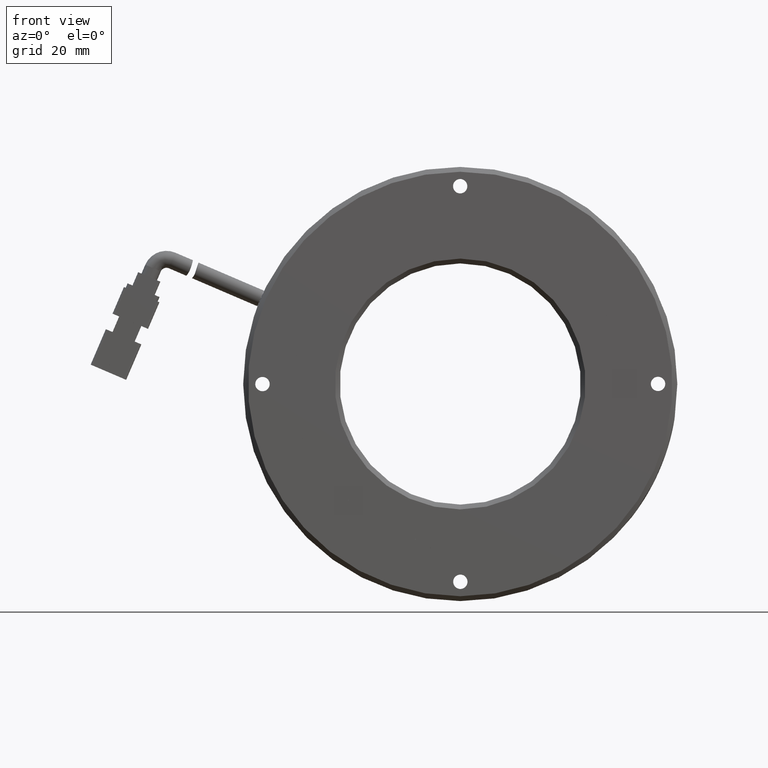
[diagram: clean part render]
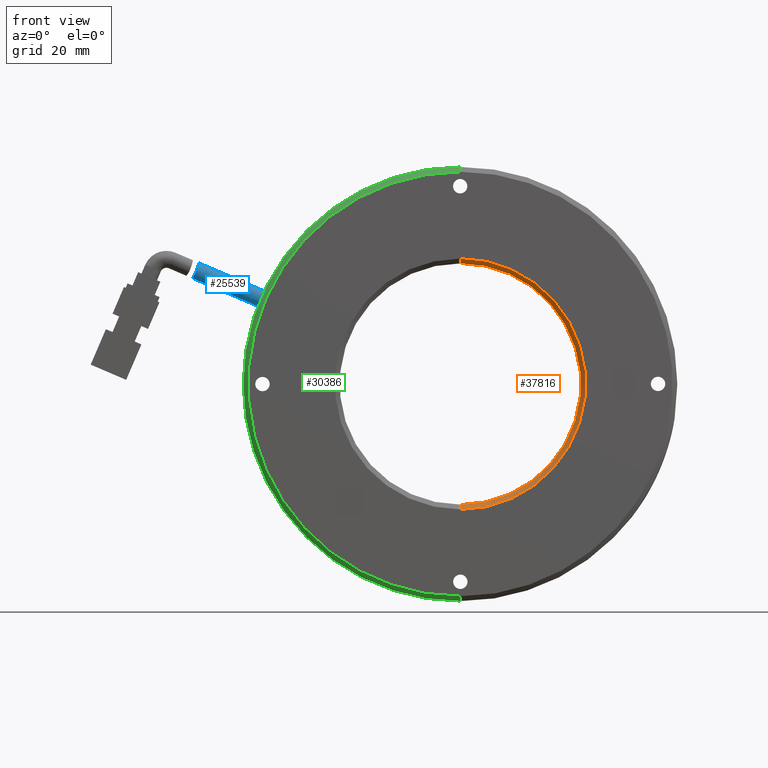
[diagram: same view with three faces highlighted in distinct colors, each labeled with its STEP entity id]
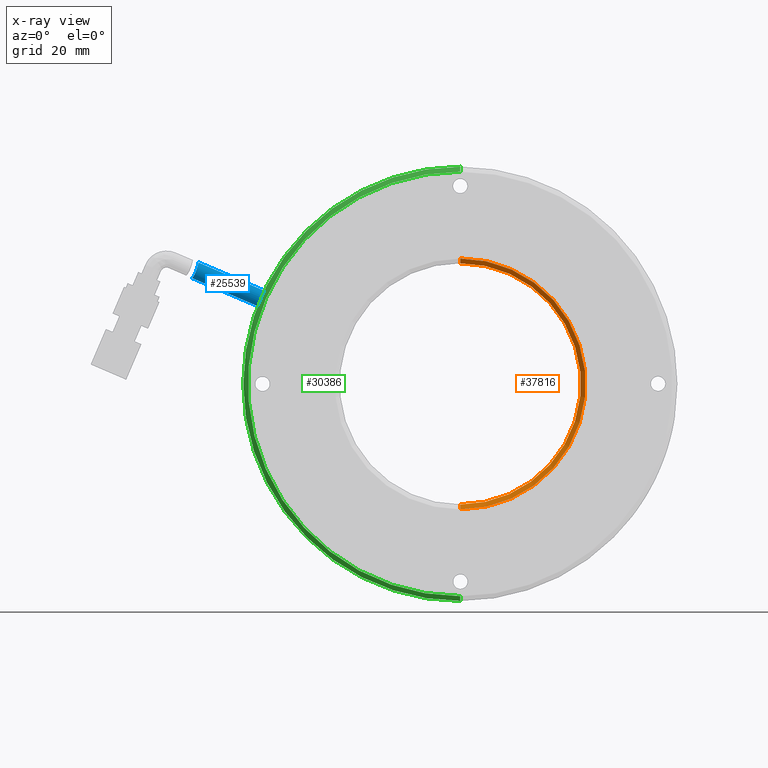
[diagram: x-ray of the same camera — body ghosted, the three highlighted faces saturated]
A machine part, front view with three faces highlighted in distinct colors.
The next image is the same camera in x-ray (body ghosted, the three faces saturated) — at least one of them is partly hidden behind the body in this view.
Their STEP definitions:

[orange] entity #37816 — the highlighted conical surface has half-angle 45 deg.
#1770 = LINE ( 'NONE', #31652, #18392 ) ;
#2200 = VERTEX_POINT ( 'NONE', #4151 ) ;
#4151 = CARTESIAN_POINT ( 'NONE',  ( 3.571428571428568500, -0.3764478764478815200, 25.00000000000000000 ) ) ;
#4312 = EDGE_CURVE ( 'NONE', #33893, #2200, #7979, .T. ) ;
#5218 = EDGE_CURVE ( 'NONE', #2200, #29329, #1770, .T. ) ;
#5671 = CIRCLE ( 'NONE', #25385, 25.99999999999998200 ) ;
#7756 = CARTESIAN_POINT ( 'NONE',  ( 3.571428571428568500, -1.376447876447878900, 25.99999999999998200 ) ) ;
#7979 = CIRCLE ( 'NONE', #21298, 25.00000000000000000 ) ;
#8101 = CARTESIAN_POINT ( 'NONE',  ( 3.571428571428565800, -1.376447876447879400, 0.0000000000000000000 ) ) ;
#9194 = EDGE_CURVE ( 'NONE', #33893, #33003, #23287, .T. ) ;
#10046 = FACE_OUTER_BOUND ( 'NONE', #24079, .T. ) ;
#10224 = CARTESIAN_POINT ( 'NONE',  ( 3.571428571428565800, -1.376447876447878900, -25.99999999999998200 ) ) ;
#10685 = CARTESIAN_POINT ( 'NONE',  ( 3.571428571428565800, -0.3764478764478824100, -25.00000000000000000 ) ) ;
#12031 = ORIENTED_EDGE ( 'NONE', *, *, #5218, .F. ) ;
#12768 = DIRECTION ( 'NONE',  ( 8.659560562354857700E-017, -0.7071067811865536800, 0.7071067811865414700 ) ) ;
#14779 = DIRECTION ( 'NONE',  ( 0.0000000000000000000, -1.000000000000000000, 0.0000000000000000000 ) ) ;
#17520 = DIRECTION ( 'NONE',  ( 0.0000000000000000000, -1.000000000000000000, 0.0000000000000000000 ) ) ;
#18392 = VECTOR ( 'NONE', #12768, 1000.000000000000000 ) ;
#20236 = CARTESIAN_POINT ( 'NONE',  ( 3.571428571428565800, -1.376447876447879400, -25.99999999999998200 ) ) ;
#20382 = EDGE_CURVE ( 'NONE', #33003, #29329, #5671, .T. ) ;
#20865 = AXIS2_PLACEMENT_3D ( 'NONE', #8101, #17520, #39743 ) ;
#21298 = AXIS2_PLACEMENT_3D ( 'NONE', #33659, #33532, #30998 ) ;
#22797 = CONICAL_SURFACE ( 'NONE', #20865, 25.99999999999998200, 0.7853981633974396200 ) ;
#23287 = LINE ( 'NONE', #20236, #40093 ) ;
#23385 = DIRECTION ( 'NONE',  ( 0.0000000000000000000, -0.7071067811865536800, -0.7071067811865414700 ) ) ;
#24079 = EDGE_LOOP ( 'NONE', ( #12031, #35949, #38933, #24176 ) ) ;
#24176 = ORIENTED_EDGE ( 'NONE', *, *, #20382, .T. ) ;
#25385 = AXIS2_PLACEMENT_3D ( 'NONE', #33664, #14779, #36836 ) ;
#29329 = VERTEX_POINT ( 'NONE', #7756 ) ;
#30998 = DIRECTION ( 'NONE',  ( 0.0000000000000000000, -3.469446951953614200E-017, -1.000000000000000000 ) ) ;
#31652 = CARTESIAN_POINT ( 'NONE',  ( 3.571428571428568500, -1.376447876447879400, 25.99999999999998200 ) ) ;
#33003 = VERTEX_POINT ( 'NONE', #10224 ) ;
#33532 = DIRECTION ( 'NONE',  ( 0.0000000000000000000, -1.000000000000000000, 0.0000000000000000000 ) ) ;
#33659 = CARTESIAN_POINT ( 'NONE',  ( 3.571428571428565800, -0.3764478764478815200, 0.0000000000000000000 ) ) ;
#33664 = CARTESIAN_POINT ( 'NONE',  ( 3.571428571428565800, -1.376447876447878900, 0.0000000000000000000 ) ) ;
#33893 = VERTEX_POINT ( 'NONE', #10685 ) ;
#35949 = ORIENTED_EDGE ( 'NONE', *, *, #4312, .F. ) ;
#36836 = DIRECTION ( 'NONE',  ( 0.0000000000000000000, 0.0000000000000000000, -1.000000000000000000 ) ) ;
#37816 = ADVANCED_FACE ( 'NONE', ( #10046 ), #22797, .F. ) ;
#38933 = ORIENTED_EDGE ( 'NONE', *, *, #9194, .T. ) ;
#39743 = DIRECTION ( 'NONE',  ( 0.0000000000000000000, 0.0000000000000000000, -1.000000000000000000 ) ) ;
#40093 = VECTOR ( 'NONE', #23385, 1000.000000000000000 ) ;

[blue] entity #25539 — the highlighted cylindrical surface (edge-blend (fillet) strip) has radius 1.75 mm, axis along (0.9191, 0, -0.394).
#478 = CARTESIAN_POINT ( 'NONE',  ( -52.02851782803413300, 2.623552123552121100, 21.93217893420495200 ) ) ;
#1263 = CARTESIAN_POINT ( 'NONE',  ( -51.07964039724015500, 0.8738358680707984900, 23.68082510628945400 ) ) ;
#1970 = CARTESIAN_POINT ( 'NONE',  ( -52.02851782803413300, 2.623552123552121100, 21.93217893420495200 ) ) ;
#2120 = DIRECTION ( 'NONE',  ( 0.9190991241167714200, 4.506924669917426800E-032, -0.3940263951155858500 ) ) ;
#4431 = CARTESIAN_POINT ( 'NONE',  ( -51.24671828439088000, 0.8847786524610654600, 23.25215865647128100 ) ) ;
#5409 = DIRECTION ( 'NONE',  ( -0.3940263951155867400, 0.0000000000000000000, -0.9190991241167709700 ) ) ;
#6328 = CARTESIAN_POINT ( 'NONE',  ( -50.68354285804238700, 2.623552123552122000, 25.16365232278814900 ) ) ;
#7284 = CARTESIAN_POINT ( 'NONE',  ( -50.68354285804238700, 2.623552123552122000, 25.16365232278814900 ) ) ;
#7430 = CARTESIAN_POINT ( 'NONE',  ( -50.69532480322725100, 2.169151481692702900, 25.10760102889362200 ) ) ;
#7568 = CARTESIAN_POINT ( 'NONE',  ( -51.38411828243214800, 0.9626814588313672400, 22.94713029651804000 ) ) ;
#9009 = VERTEX_POINT ( 'NONE', #478 ) ;
#10572 = CARTESIAN_POINT ( 'NONE',  ( -50.72151728457915700, 1.845815987376248700, 24.98612914325708400 ) ) ;
#11267 = CARTESIAN_POINT ( 'NONE',  ( -51.62667506849177800, 1.223803260120380300, 22.49418230373059700 ) ) ;
#11499 = EDGE_CURVE ( 'NONE', #22033, #9009, #16804, .T. ) ;
#11994 = CYLINDRICAL_SURFACE ( 'NONE', #20785, 1.750000000000000200 ) ;
#12322 = DIRECTION ( 'NONE',  ( -0.9190991241167714200, -4.506924669917426800E-032, 0.3940263951155858500 ) ) ;
#13707 = CARTESIAN_POINT ( 'NONE',  ( -50.76204291592965500, 1.555363708025988600, 24.80657324504884500 ) ) ;
#14413 = CARTESIAN_POINT ( 'NONE',  ( -51.80328874567268800, 1.555135114057395700, 22.22659939522225500 ) ) ;
#15132 = CIRCLE ( 'NONE', #17769, 1.750000000000000200 ) ;
#15348 = VECTOR ( 'NONE', #40735, 1000.000000000000100 ) ;
#16804 = B_SPLINE_CURVE_WITH_KNOTS ( 'NONE', 3,
 ( #7284, #32446, #26247, #7430, #29438, #10572, #32594, #13707, #35769, #16858, #38958, #20028, #1263, #23200, #4431, #26376, #7568, #30141, #11267, #33307, #14413, #36475, #17542, #39650, #20744, #1970 ),
 .UNSPECIFIED., .F., .F.,
 ( 4, 2, 2, 2, 2, 2, 2, 2, 2, 2, 2, 2, 4 ),
 ( 2.153172013482225800E-017, 0.0003431607499797095900, 0.0006863214999593977100, 0.001029482249939085700, 0.001372642999918773700, 0.002058964499878154000, 0.002745285999837534900, 0.003088446749817219900, 0.003431607499796905000, 0.004117928999756283700, 0.004461089749735977000, 0.004804250499715671100, 0.005490571999675061100 ),
 .UNSPECIFIED. ) ;
#16858 = CARTESIAN_POINT ( 'NONE',  ( -50.83720605662259800, 1.224568790505175000, 24.49586040886067900 ) ) ;
#17542 = CARTESIAN_POINT ( 'NONE',  ( -51.91329328097216200, 1.846364108505569800, 22.07633125900905900 ) ) ;
#17583 = CARTESIAN_POINT ( 'NONE',  ( -37.09848582237392400, 2.623552123552121100, 19.33961124740573500 ) ) ;
#17769 = AXIS2_PLACEMENT_3D ( 'NONE', #31195, #12322, #34388 ) ;
#18629 = CARTESIAN_POINT ( 'NONE',  ( -56.85956068761390700, 2.623552123552121100, 24.00329221530875400 ) ) ;
#20028 = CARTESIAN_POINT ( 'NONE',  ( -51.00721059224564200, 0.9201902850518135500, 23.90024516809798900 ) ) ;
#20251 = CARTESIAN_POINT ( 'NONE',  ( -55.48046830470935500, 2.623552123552121100, 27.22013914971745100 ) ) ;
#20744 = CARTESIAN_POINT ( 'NONE',  ( -52.02851782803415400, 2.391390157652095700, 21.93217893420496600 ) ) ;
#20785 = AXIS2_PLACEMENT_3D ( 'NONE', #33461, #2120, #5409 ) ;
#21605 = ORIENTED_EDGE ( 'NONE', *, *, #34549, .F. ) ;
#22033 = VERTEX_POINT ( 'NONE', #6328 ) ;
#23200 = CARTESIAN_POINT ( 'NONE',  ( -51.20254917035004600, 0.8734122491507148000, 23.35994030167844900 ) ) ;
#23448 = VERTEX_POINT ( 'NONE', #17583 ) ;
#23726 = LINE ( 'NONE', #18629, #15348 ) ;
#24298 = FACE_OUTER_BOUND ( 'NONE', #32298, .T. ) ;
#25539 = ADVANCED_FACE ( 'NONE', ( #24298 ), #11994, .T. ) ;
#26247 = CARTESIAN_POINT ( 'NONE',  ( -50.68591565652417300, 2.393443971605387200, 25.15223396018181700 ) ) ;
#26376 = CARTESIAN_POINT ( 'NONE',  ( -51.33737685115718800, 0.9295290906878136400, 23.04615637797395800 ) ) ;
#26866 = LINE ( 'NONE', #20251, #35224 ) ;
#28428 = CARTESIAN_POINT ( 'NONE',  ( -38.47757820527847600, 2.623552123552121100, 16.12276431299703500 ) ) ;
#29438 = CARTESIAN_POINT ( 'NONE',  ( -50.70248157663473200, 2.057725382615567700, 25.07381899001490700 ) ) ;
#30141 = CARTESIAN_POINT ( 'NONE',  ( -51.52823062712553800, 1.094757445249773000, 22.66190402656213400 ) ) ;
#31195 = CARTESIAN_POINT ( 'NONE',  ( -37.78803201382620400, 2.623552123552121100, 17.73118778020138500 ) ) ;
#32236 = ORIENTED_EDGE ( 'NONE', *, *, #39346, .T. ) ;
#32298 = EDGE_LOOP ( 'NONE', ( #21605, #38959, #37376, #32236 ) ) ;
#32446 = CARTESIAN_POINT ( 'NONE',  ( -50.68354285804240100, 2.507499224030748800, 25.16365232278815600 ) ) ;
#32594 = CARTESIAN_POINT ( 'NONE',  ( -50.73331311162690600, 1.745379166024197500, 24.93258824459822200 ) ) ;
#33307 = CARTESIAN_POINT ( 'NONE',  ( -51.76144079505712600, 1.467280807094164500, 22.28705144860454700 ) ) ;
#33461 = CARTESIAN_POINT ( 'NONE',  ( -56.17001449616162700, 2.623552123552121100, 25.61171568251310000 ) ) ;
#34388 = DIRECTION ( 'NONE',  ( -0.3940263951155867400, 0.0000000000000000000, -0.9190991241167709700 ) ) ;
#34549 = EDGE_CURVE ( 'NONE', #22033, #23448, #26866, .T. ) ;
#35224 = VECTOR ( 'NONE', #39158, 1000.000000000000100 ) ;
#35425 = EDGE_CURVE ( 'NONE', #9009, #35475, #23726, .T. ) ;
#35475 = VERTEX_POINT ( 'NONE', #28428 ) ;
#35769 = CARTESIAN_POINT ( 'NONE',  ( -50.77909560755499300, 1.465710635176062000, 24.73364882688971300 ) ) ;
#36475 = CARTESIAN_POINT ( 'NONE',  ( -51.87908552546488000, 1.744069041795588900, 22.12139230228985200 ) ) ;
#37376 = ORIENTED_EDGE ( 'NONE', *, *, #35425, .T. ) ;
#38958 = CARTESIAN_POINT ( 'NONE',  ( -50.88678285882374300, 1.094646765137655500, 24.30560019710689100 ) ) ;
#38959 = ORIENTED_EDGE ( 'NONE', *, *, #11499, .T. ) ;
#39158 = DIRECTION ( 'NONE',  ( 0.9190991241167713000, 4.506924669917426200E-032, -0.3940263951155857900 ) ) ;
#39346 = EDGE_CURVE ( 'NONE', #35475, #23448, #15132, .T. ) ;
#39650 = CARTESIAN_POINT ( 'NONE',  ( -51.99689455294409900, 2.162766865945132500, 21.96907219021952400 ) ) ;
#40735 = DIRECTION ( 'NONE',  ( 0.9190991241167713000, 4.506924669917426200E-032, -0.3940263951155857900 ) ) ;

[green] entity #30386 — the highlighted conical surface has half-angle 45 deg.
#14 = CIRCLE ( 'NONE', #34735, 44.00000000000000000 ) ;
#3276 = CONICAL_SURFACE ( 'NONE', #26286, 45.00000000000000000, 0.7853981633974410600 ) ;
#4505 = CIRCLE ( 'NONE', #5110, 44.99999999999999300 ) ;
#5110 = AXIS2_PLACEMENT_3D ( 'NONE', #6326, #28329, #9462 ) ;
#6326 = CARTESIAN_POINT ( 'NONE',  ( 3.571428571428565800, -0.3764478764478641500, 0.0000000000000000000 ) ) ;
#6621 = CARTESIAN_POINT ( 'NONE',  ( 3.571428571428571200, -0.3764478764478641500, 45.00000000000000000 ) ) ;
#7073 = CARTESIAN_POINT ( 'NONE',  ( 3.571428571428565800, -0.3764478764478641500, -45.00000000000000000 ) ) ;
#7853 = EDGE_CURVE ( 'NONE', #24598, #27303, #14, .T. ) ;
#8569 = CARTESIAN_POINT ( 'NONE',  ( 3.571428571428565800, -1.376447876447878900, 0.0000000000000000000 ) ) ;
#8724 = ORIENTED_EDGE ( 'NONE', *, *, #36548, .T. ) ;
#9462 = DIRECTION ( 'NONE',  ( 0.0000000000000000000, 3.373073425510458600E-017, 1.000000000000000000 ) ) ;
#11078 = CARTESIAN_POINT ( 'NONE',  ( 3.571428571428565800, -0.3764478764478635400, 0.0000000000000000000 ) ) ;
#11344 = EDGE_CURVE ( 'NONE', #33458, #21488, #4505, .T. ) ;
#11411 = LINE ( 'NONE', #36464, #34548 ) ;
#11511 = DIRECTION ( 'NONE',  ( 8.659560562354870000E-017, 0.7071067811865526800, -0.7071067811865423500 ) ) ;
#11698 = DIRECTION ( 'NONE',  ( 0.0000000000000000000, 0.0000000000000000000, 1.000000000000000000 ) ) ;
#13940 = DIRECTION ( 'NONE',  ( 0.0000000000000000000, 0.7071067811865526800, 0.7071067811865423500 ) ) ;
#14610 = DIRECTION ( 'NONE',  ( -0.0000000000000000000, 1.000000000000000000, 0.0000000000000000000 ) ) ;
#15535 = FACE_OUTER_BOUND ( 'NONE', #36419, .T. ) ;
#16447 = ORIENTED_EDGE ( 'NONE', *, *, #11344, .T. ) ;
#16641 = VECTOR ( 'NONE', #13940, 1000.000000000000000 ) ;
#18271 = EDGE_CURVE ( 'NONE', #24598, #21488, #11411, .T. ) ;
#21485 = CARTESIAN_POINT ( 'NONE',  ( 3.571428571428570700, -1.376447876447878900, -44.00000000000000000 ) ) ;
#21488 = VERTEX_POINT ( 'NONE', #7073 ) ;
#24598 = VERTEX_POINT ( 'NONE', #21485 ) ;
#26286 = AXIS2_PLACEMENT_3D ( 'NONE', #11078, #14610, #27306 ) ;
#27303 = VERTEX_POINT ( 'NONE', #35810 ) ;
#27306 = DIRECTION ( 'NONE',  ( 0.0000000000000000000, 0.0000000000000000000, 1.000000000000000000 ) ) ;
#28156 = ORIENTED_EDGE ( 'NONE', *, *, #18271, .F. ) ;
#28329 = DIRECTION ( 'NONE',  ( -0.0000000000000000000, -1.000000000000000000, -0.0000000000000000000 ) ) ;
#30386 = ADVANCED_FACE ( 'NONE', ( #15535 ), #3276, .T. ) ;
#30576 = DIRECTION ( 'NONE',  ( -0.0000000000000000000, 1.000000000000000000, 0.0000000000000000000 ) ) ;
#32816 = CARTESIAN_POINT ( 'NONE',  ( 3.571428571428565800, -0.3764478764478635400, 45.00000000000000000 ) ) ;
#33443 = LINE ( 'NONE', #32816, #16641 ) ;
#33458 = VERTEX_POINT ( 'NONE', #6621 ) ;
#34548 = VECTOR ( 'NONE', #11511, 1000.000000000000000 ) ;
#34735 = AXIS2_PLACEMENT_3D ( 'NONE', #8569, #30576, #11698 ) ;
#35810 = CARTESIAN_POINT ( 'NONE',  ( 3.571428571428565800, -1.376447876447878900, 44.00000000000000000 ) ) ;
#36419 = EDGE_LOOP ( 'NONE', ( #28156, #38875, #8724, #16447 ) ) ;
#36464 = CARTESIAN_POINT ( 'NONE',  ( 3.571428571428571200, -0.3764478764478635400, -45.00000000000000000 ) ) ;
#36548 = EDGE_CURVE ( 'NONE', #27303, #33458, #33443, .T. ) ;
#38875 = ORIENTED_EDGE ( 'NONE', *, *, #7853, .T. ) ;